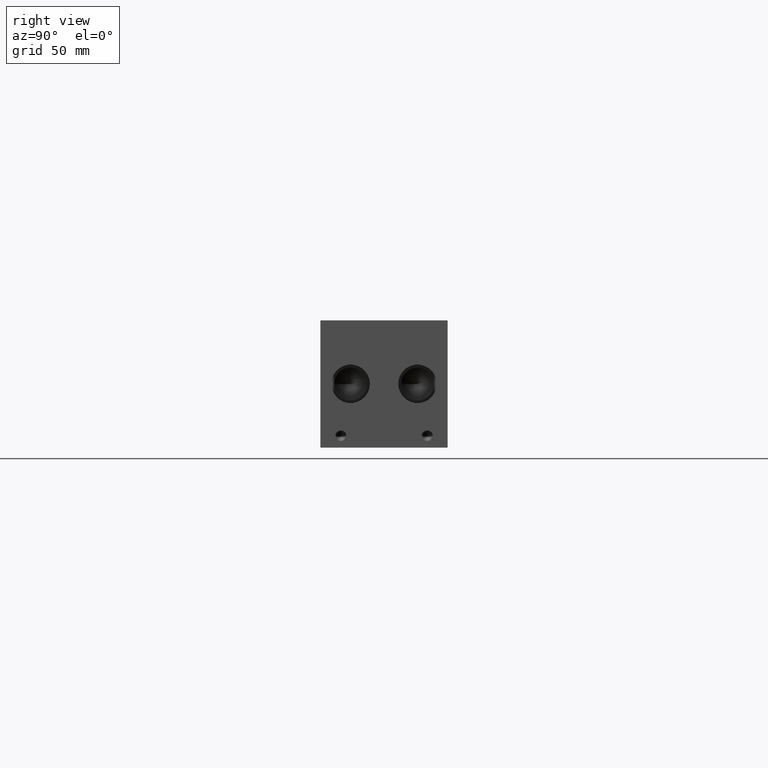
[diagram: clean part render]
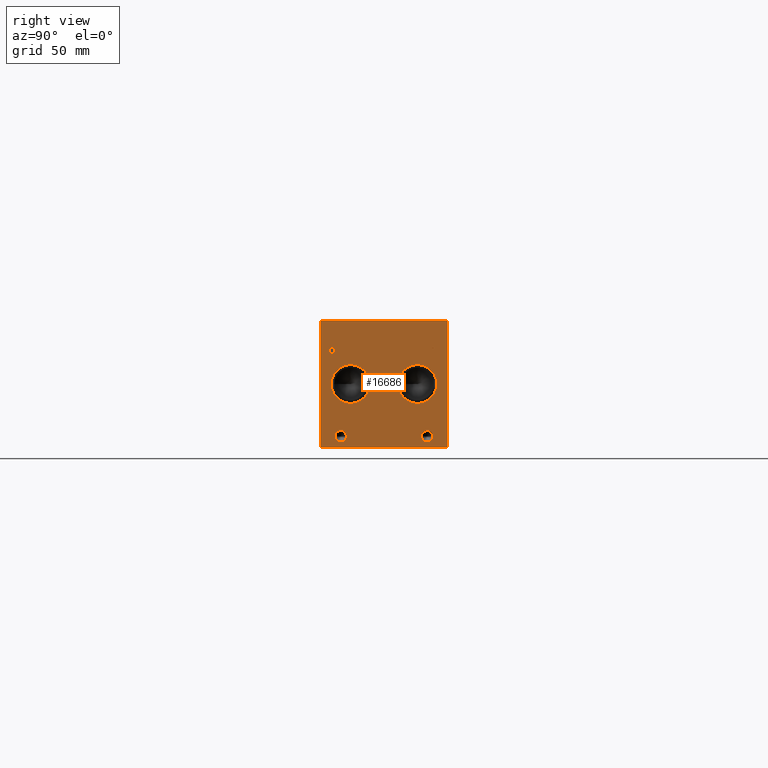
[diagram: same view with one face highlighted and labeled with its STEP entity id]
A machine part, right view. The second image highlights one B-rep face of the part: STEP entity #16686.
In plain terms, the highlighted planar face has unit normal (1, 0, 0).
Its self-contained STEP definition (entity closure, byte-faithful):
#452=CIRCLE('',#17405,13.462);
#453=CIRCLE('',#17406,13.462);
#454=CIRCLE('',#17407,13.462);
#455=CIRCLE('',#17408,13.462);
#456=CIRCLE('',#17409,3.9624);
#457=CIRCLE('',#17410,3.9624);
#458=CIRCLE('',#17411,3.9624);
#459=CIRCLE('',#17412,3.9624);
#1241=B_SPLINE_CURVE_WITH_KNOTS('',2,(#27664,#27665,#27666,#27667),
 .UNSPECIFIED.,.F.,.F.,(3,1,3),(0.,1.,2.),.UNSPECIFIED.);
#1243=B_SPLINE_CURVE_WITH_KNOTS('',2,(#27685,#27686,#27687,#27688),
 .UNSPECIFIED.,.F.,.F.,(3,1,3),(0.,1.,2.),.UNSPECIFIED.);
#1245=B_SPLINE_CURVE_WITH_KNOTS('',2,(#27734,#27735,#27736,#27737),
 .UNSPECIFIED.,.F.,.F.,(3,1,3),(0.,1.,2.),.UNSPECIFIED.);
#1247=B_SPLINE_CURVE_WITH_KNOTS('',2,(#27752,#27753,#27754,#27755),
 .UNSPECIFIED.,.F.,.F.,(3,1,3),(0.,1.,2.),.UNSPECIFIED.);
#1349=FACE_BOUND('',#3000,.T.);
#1350=FACE_BOUND('',#3001,.T.);
#1351=FACE_BOUND('',#3002,.T.);
#1352=FACE_BOUND('',#3003,.T.);
#1353=FACE_BOUND('',#3004,.T.);
#1354=FACE_BOUND('',#3005,.T.);
#2044=FACE_OUTER_BOUND('',#2999,.T.);
#2999=EDGE_LOOP('',(#13570,#13571,#13572,#13573));
#3000=EDGE_LOOP('',(#13574,#13575));
#3001=EDGE_LOOP('',(#13576,#13577));
#3002=EDGE_LOOP('',(#13578,#13579));
#3003=EDGE_LOOP('',(#13580,#13581));
#3004=EDGE_LOOP('',(#13582,#13583,#13584,#13585,#13586,#13587,#13588,#13589));
#3005=EDGE_LOOP('',(#13590,#13591,#13592,#13593,#13594,#13595,#13596,#13597,
#13598));
#3419=LINE('',#21744,#4903);
#4576=LINE('',#27697,#6060);
#4579=LINE('',#27703,#6063);
#4582=LINE('',#27709,#6066);
#4585=LINE('',#27715,#6069);
#4588=LINE('',#27721,#6072);
#4592=LINE('',#27763,#6076);
#4593=LINE('',#27765,#6077);
#4594=LINE('',#27766,#6078);
#4595=LINE('',#27785,#6079);
#4596=LINE('',#27787,#6080);
#4597=LINE('',#27789,#6081);
#4598=LINE('',#27791,#6082);
#4599=LINE('',#27793,#6083);
#4600=LINE('',#27795,#6084);
#4601=LINE('',#27797,#6085);
#4602=LINE('',#27798,#6086);
#4903=VECTOR('',#18113,10.);
#6060=VECTOR('',#20074,10.);
#6063=VECTOR('',#20079,10.);
#6066=VECTOR('',#20084,10.);
#6069=VECTOR('',#20089,10.);
#6072=VECTOR('',#20094,10.);
#6076=VECTOR('',#20102,10.);
#6077=VECTOR('',#20103,10.);
#6078=VECTOR('',#20104,10.);
#6079=VECTOR('',#20121,10.);
#6080=VECTOR('',#20122,10.);
#6081=VECTOR('',#20123,10.);
#6082=VECTOR('',#20124,10.);
#6083=VECTOR('',#20125,10.);
#6084=VECTOR('',#20126,10.);
#6085=VECTOR('',#20127,10.);
#6086=VECTOR('',#20128,10.);
#6376=VERTEX_POINT('',#21741);
#6377=VERTEX_POINT('',#21743);
#7461=VERTEX_POINT('',#27662);
#7462=VERTEX_POINT('',#27663);
#7465=VERTEX_POINT('',#27684);
#7467=VERTEX_POINT('',#27696);
#7469=VERTEX_POINT('',#27702);
#7471=VERTEX_POINT('',#27708);
#7473=VERTEX_POINT('',#27714);
#7475=VERTEX_POINT('',#27720);
#7477=VERTEX_POINT('',#27733);
#7479=VERTEX_POINT('',#27762);
#7480=VERTEX_POINT('',#27764);
#7481=VERTEX_POINT('',#27767);
#7482=VERTEX_POINT('',#27768);
#7483=VERTEX_POINT('',#27771);
#7484=VERTEX_POINT('',#27772);
#7485=VERTEX_POINT('',#27775);
#7486=VERTEX_POINT('',#27776);
#7487=VERTEX_POINT('',#27779);
#7488=VERTEX_POINT('',#27780);
#7489=VERTEX_POINT('',#27783);
#7490=VERTEX_POINT('',#27784);
#7491=VERTEX_POINT('',#27786);
#7492=VERTEX_POINT('',#27788);
#7493=VERTEX_POINT('',#27790);
#7494=VERTEX_POINT('',#27792);
#7495=VERTEX_POINT('',#27794);
#7496=VERTEX_POINT('',#27796);
#8029=EDGE_CURVE('',#6376,#6377,#3419,.T.);
#9629=EDGE_CURVE('',#7461,#7462,#1241,.T.);
#9633=EDGE_CURVE('',#7465,#7461,#1243,.T.);
#9636=EDGE_CURVE('',#7467,#7465,#4576,.T.);
#9639=EDGE_CURVE('',#7469,#7467,#4579,.T.);
#9642=EDGE_CURVE('',#7471,#7469,#4582,.T.);
#9645=EDGE_CURVE('',#7473,#7471,#4585,.T.);
#9648=EDGE_CURVE('',#7475,#7473,#4588,.T.);
#9651=EDGE_CURVE('',#7477,#7475,#1245,.T.);
#9654=EDGE_CURVE('',#7462,#7477,#1247,.T.);
#9656=EDGE_CURVE('',#6376,#7479,#4592,.T.);
#9657=EDGE_CURVE('',#7479,#7480,#4593,.T.);
#9658=EDGE_CURVE('',#6377,#7480,#4594,.T.);
#9659=EDGE_CURVE('',#7481,#7482,#452,.T.);
#9660=EDGE_CURVE('',#7482,#7481,#453,.T.);
#9661=EDGE_CURVE('',#7483,#7484,#454,.T.);
#9662=EDGE_CURVE('',#7484,#7483,#455,.T.);
#9663=EDGE_CURVE('',#7485,#7486,#456,.T.);
#9664=EDGE_CURVE('',#7486,#7485,#457,.T.);
#9665=EDGE_CURVE('',#7487,#7488,#458,.T.);
#9666=EDGE_CURVE('',#7488,#7487,#459,.T.);
#9667=EDGE_CURVE('',#7489,#7490,#4595,.T.);
#9668=EDGE_CURVE('',#7490,#7491,#4596,.T.);
#9669=EDGE_CURVE('',#7491,#7492,#4597,.T.);
#9670=EDGE_CURVE('',#7492,#7493,#4598,.T.);
#9671=EDGE_CURVE('',#7493,#7494,#4599,.T.);
#9672=EDGE_CURVE('',#7494,#7495,#4600,.T.);
#9673=EDGE_CURVE('',#7495,#7496,#4601,.T.);
#9674=EDGE_CURVE('',#7496,#7489,#4602,.T.);
#13570=ORIENTED_EDGE('',*,*,#9656,.T.);
#13571=ORIENTED_EDGE('',*,*,#9657,.T.);
#13572=ORIENTED_EDGE('',*,*,#9658,.F.);
#13573=ORIENTED_EDGE('',*,*,#8029,.F.);
#13574=ORIENTED_EDGE('',*,*,#9659,.T.);
#13575=ORIENTED_EDGE('',*,*,#9660,.T.);
#13576=ORIENTED_EDGE('',*,*,#9661,.T.);
#13577=ORIENTED_EDGE('',*,*,#9662,.T.);
#13578=ORIENTED_EDGE('',*,*,#9663,.T.);
#13579=ORIENTED_EDGE('',*,*,#9664,.T.);
#13580=ORIENTED_EDGE('',*,*,#9665,.T.);
#13581=ORIENTED_EDGE('',*,*,#9666,.T.);
#13582=ORIENTED_EDGE('',*,*,#9667,.T.);
#13583=ORIENTED_EDGE('',*,*,#9668,.T.);
#13584=ORIENTED_EDGE('',*,*,#9669,.T.);
#13585=ORIENTED_EDGE('',*,*,#9670,.T.);
#13586=ORIENTED_EDGE('',*,*,#9671,.T.);
#13587=ORIENTED_EDGE('',*,*,#9672,.T.);
#13588=ORIENTED_EDGE('',*,*,#9673,.T.);
#13589=ORIENTED_EDGE('',*,*,#9674,.T.);
#13590=ORIENTED_EDGE('',*,*,#9629,.T.);
#13591=ORIENTED_EDGE('',*,*,#9654,.T.);
#13592=ORIENTED_EDGE('',*,*,#9651,.T.);
#13593=ORIENTED_EDGE('',*,*,#9648,.T.);
#13594=ORIENTED_EDGE('',*,*,#9645,.T.);
#13595=ORIENTED_EDGE('',*,*,#9642,.T.);
#13596=ORIENTED_EDGE('',*,*,#9639,.T.);
#13597=ORIENTED_EDGE('',*,*,#9636,.T.);
#13598=ORIENTED_EDGE('',*,*,#9633,.T.);
#15392=PLANE('',#17404);
#16686=ADVANCED_FACE('',(#2044,#1349,#1350,#1351,#1352,#1353,#1354),#15392,
 .T.);
#17404=AXIS2_PLACEMENT_3D('',#27761,#20100,#20101);
#17405=AXIS2_PLACEMENT_3D('',#27769,#20105,#20106);
#17406=AXIS2_PLACEMENT_3D('',#27770,#20107,#20108);
#17407=AXIS2_PLACEMENT_3D('',#27773,#20109,#20110);
#17408=AXIS2_PLACEMENT_3D('',#27774,#20111,#20112);
#17409=AXIS2_PLACEMENT_3D('',#27777,#20113,#20114);
#17410=AXIS2_PLACEMENT_3D('',#27778,#20115,#20116);
#17411=AXIS2_PLACEMENT_3D('',#27781,#20117,#20118);
#17412=AXIS2_PLACEMENT_3D('',#27782,#20119,#20120);
#18113=DIRECTION('',(0.,0.,1.));
#20074=DIRECTION('',(0.,1.,0.));
#20079=DIRECTION('',(0.,0.,1.));
#20084=DIRECTION('',(0.,-1.,0.));
#20089=DIRECTION('',(0.,0.,-1.));
#20094=DIRECTION('',(0.,-1.,0.));
#20100=DIRECTION('center_axis',(1.,0.,0.));
#20101=DIRECTION('ref_axis',(0.,1.,0.));
#20102=DIRECTION('',(0.,1.,0.));
#20103=DIRECTION('',(0.,0.,1.));
#20104=DIRECTION('',(0.,1.,0.));
#20105=DIRECTION('center_axis',(-1.,0.,0.));
#20106=DIRECTION('ref_axis',(0.,1.,0.));
#20107=DIRECTION('center_axis',(-1.,0.,0.));
#20108=DIRECTION('ref_axis',(0.,1.,0.));
#20109=DIRECTION('center_axis',(-1.,0.,0.));
#20110=DIRECTION('ref_axis',(0.,1.,0.));
#20111=DIRECTION('center_axis',(-1.,0.,0.));
#20112=DIRECTION('ref_axis',(0.,1.,0.));
#20113=DIRECTION('center_axis',(-1.,0.,0.));
#20114=DIRECTION('ref_axis',(0.,1.,0.));
#20115=DIRECTION('center_axis',(-1.,0.,0.));
#20116=DIRECTION('ref_axis',(0.,1.,0.));
#20117=DIRECTION('center_axis',(-1.,0.,0.));
#20118=DIRECTION('ref_axis',(0.,1.,0.));
#20119=DIRECTION('center_axis',(-1.,0.,0.));
#20120=DIRECTION('ref_axis',(0.,1.,0.));
#20121=DIRECTION('',(0.,-1.,0.));
#20122=DIRECTION('',(0.,0.,1.));
#20123=DIRECTION('',(0.,-1.,0.));
#20124=DIRECTION('',(0.,0.,1.));
#20125=DIRECTION('',(0.,1.,0.));
#20126=DIRECTION('',(0.,0.,-1.));
#20127=DIRECTION('',(0.,-1.,0.));
#20128=DIRECTION('',(0.,0.,-1.));
#21741=CARTESIAN_POINT('',(495.3,0.,0.));
#21743=CARTESIAN_POINT('',(495.3,0.,88.9));
#21744=CARTESIAN_POINT('',(495.3,0.,0.));
#27662=CARTESIAN_POINT('',(495.3,9.45681720235939,69.4537681439707));
#27663=CARTESIAN_POINT('',(495.3,10.213259654532,67.935737372604));
#27664=CARTESIAN_POINT('Ctrl Pts',(495.3,9.45681720235939,69.4537681439707));
#27665=CARTESIAN_POINT('Ctrl Pts',(495.3,9.81188202684857,69.2119123939564));
#27666=CARTESIAN_POINT('Ctrl Pts',(495.3,10.213259654532,68.4657616758269));
#27667=CARTESIAN_POINT('Ctrl Pts',(495.3,10.213259654532,67.935737372604));
#27684=CARTESIAN_POINT('',(495.3,7.7947021543883,69.8499999046326));
#27685=CARTESIAN_POINT('Ctrl Pts',(495.3,7.7947021543883,69.8499999046326));
#27686=CARTESIAN_POINT('Ctrl Pts',(495.3,8.36074752676236,69.8499999046326));
#27687=CARTESIAN_POINT('Ctrl Pts',(495.3,9.15321104808603,69.6647486918556));
#27688=CARTESIAN_POINT('Ctrl Pts',(495.3,9.45681720235939,69.4537681439707));
#27696=CARTESIAN_POINT('',(495.3,6.19948337769779,69.8499999046326));
#27697=CARTESIAN_POINT('',(495.3,3.09974168884889,69.8499999046326));
#27702=CARTESIAN_POINT('',(495.3,6.19948337769779,63.5));
#27703=CARTESIAN_POINT('',(495.3,6.19948337769779,31.75));
#27708=CARTESIAN_POINT('',(495.3,7.04340556923729,63.5));
#27709=CARTESIAN_POINT('',(495.3,3.52170278461864,63.5));
#27714=CARTESIAN_POINT('',(495.3,7.04340556923729,65.8670988299279));
#27715=CARTESIAN_POINT('',(495.3,7.04340556923729,32.9335494149639));
#27720=CARTESIAN_POINT('',(495.3,7.75868108523723,65.8670988299279));
#27721=CARTESIAN_POINT('',(495.3,3.87934054261861,65.8670988299279));
#27733=CARTESIAN_POINT('',(495.3,9.6575060162011,66.5257698086904));
#27734=CARTESIAN_POINT('Ctrl Pts',(495.3,9.6575060162011,66.5257698086904));
#27735=CARTESIAN_POINT('Ctrl Pts',(495.3,9.32817052681983,66.2015801863307));
#27736=CARTESIAN_POINT('Ctrl Pts',(495.3,8.43793553208609,65.8670988299279));
#27737=CARTESIAN_POINT('Ctrl Pts',(495.3,7.75868108523723,65.8670988299279));
#27752=CARTESIAN_POINT('Ctrl Pts',(495.3,10.213259654532,67.935737372604));
#27753=CARTESIAN_POINT('Ctrl Pts',(495.3,10.213259654532,67.5240680108774));
#27754=CARTESIAN_POINT('Ctrl Pts',(495.3,9.9199452343018,66.7830631597695));
#27755=CARTESIAN_POINT('Ctrl Pts',(495.3,9.6575060162011,66.5257698086904));
#27761=CARTESIAN_POINT('Origin',(495.3,0.,0.));
#27762=CARTESIAN_POINT('',(495.3,88.9,0.));
#27763=CARTESIAN_POINT('',(495.3,0.,0.));
#27764=CARTESIAN_POINT('',(495.3,88.9,88.9));
#27765=CARTESIAN_POINT('',(495.3,88.9,0.));
#27766=CARTESIAN_POINT('',(495.3,0.,88.9));
#27767=CARTESIAN_POINT('',(495.3,34.544,44.45));
#27768=CARTESIAN_POINT('',(495.3,7.62,44.45));
#27769=CARTESIAN_POINT('Origin',(495.3,21.082,44.45));
#27770=CARTESIAN_POINT('Origin',(495.3,21.082,44.45));
#27771=CARTESIAN_POINT('',(495.3,81.28,44.45));
#27772=CARTESIAN_POINT('',(495.3,54.356,44.45));
#27773=CARTESIAN_POINT('Origin',(495.3,67.818,44.45));
#27774=CARTESIAN_POINT('Origin',(495.3,67.818,44.45));
#27775=CARTESIAN_POINT('',(495.3,78.5876,7.9248));
#27776=CARTESIAN_POINT('',(495.3,70.6628,7.9248));
#27777=CARTESIAN_POINT('Origin',(495.3,74.6252,7.9248));
#27778=CARTESIAN_POINT('Origin',(495.3,74.6252,7.9248));
#27779=CARTESIAN_POINT('',(495.3,18.2372,7.9248));
#27780=CARTESIAN_POINT('',(495.3,10.3124,7.9248));
#27781=CARTESIAN_POINT('Origin',(495.3,14.2748,7.9248));
#27782=CARTESIAN_POINT('Origin',(495.3,14.2748,7.9248));
#27783=CARTESIAN_POINT('',(495.3,80.756665271453,63.5));
#27784=CARTESIAN_POINT('',(495.3,79.9127430799135,63.5));
#27785=CARTESIAN_POINT('',(495.3,40.3783326357265,63.5));
#27786=CARTESIAN_POINT('',(495.3,79.9127430799135,69.0987033194816));
#27787=CARTESIAN_POINT('',(495.3,79.9127430799135,31.75));
#27788=CARTESIAN_POINT('',(495.3,77.7823541329784,69.0987033194816));
#27789=CARTESIAN_POINT('',(495.3,39.9563715399567,69.0987033194816));
#27790=CARTESIAN_POINT('',(495.3,77.7823541329784,69.8499999046326));
#27791=CARTESIAN_POINT('',(495.3,77.7823541329784,34.5493516597408));
#27792=CARTESIAN_POINT('',(495.3,82.8870542183881,69.8499999046326));
#27793=CARTESIAN_POINT('',(495.3,38.8911770664892,69.8499999046326));
#27794=CARTESIAN_POINT('',(495.3,82.8870542183881,69.0987033194816));
#27795=CARTESIAN_POINT('',(495.3,82.8870542183881,34.9249999523163));
#27796=CARTESIAN_POINT('',(495.3,80.756665271453,69.0987033194816));
#27797=CARTESIAN_POINT('',(495.3,41.443527109194,69.0987033194816));
#27798=CARTESIAN_POINT('',(495.3,80.756665271453,34.5493516597408));